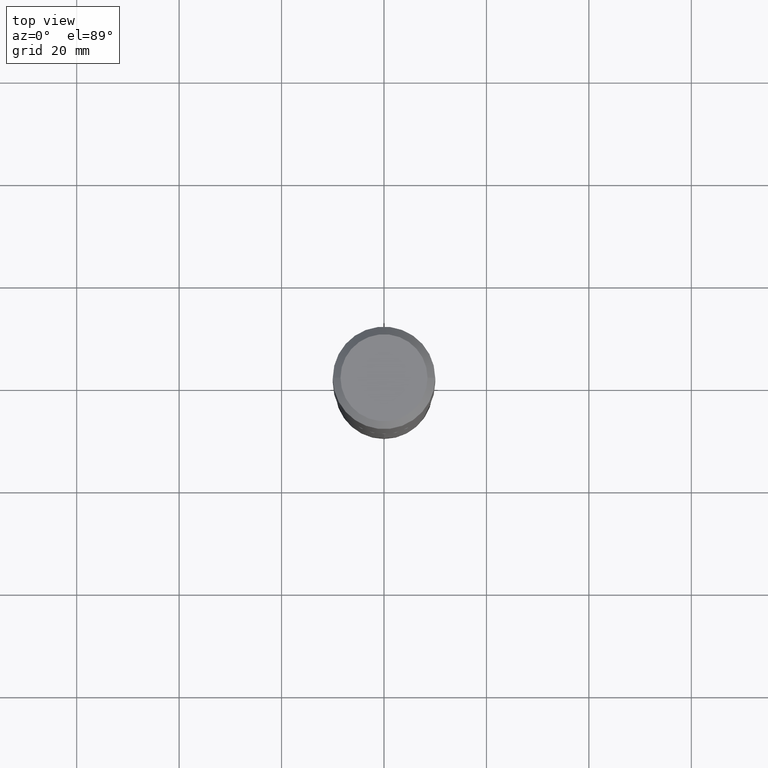
[diagram: clean part render]
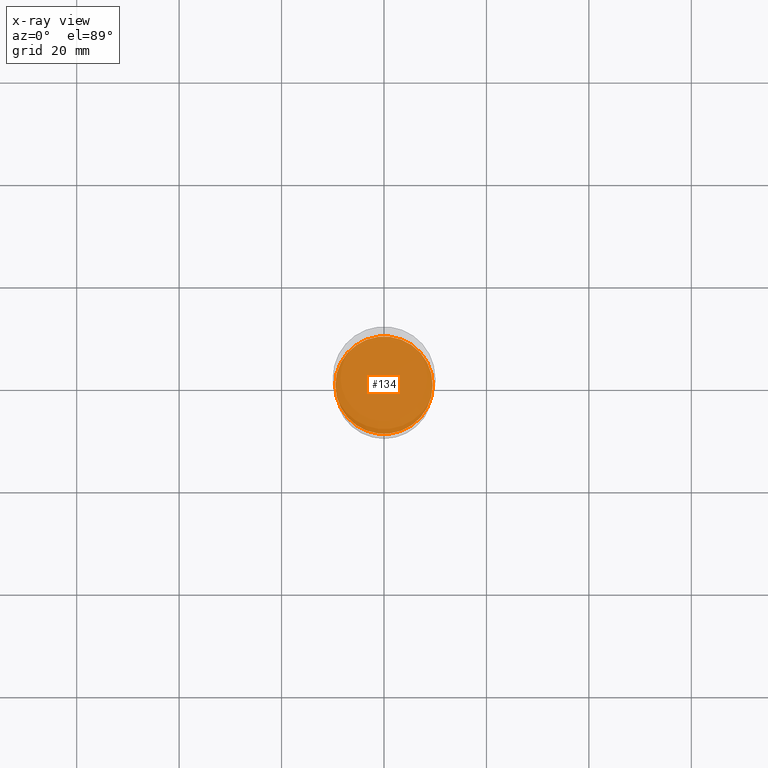
[diagram: x-ray — body ghosted, one internal face saturated and labeled with its STEP entity id]
A machine part, top view, then the same camera in x-ray: the body is ghosted and one INTERNAL B-rep face — a face not visible from any outside direction — is saturated and labeled: STEP entity #134.
In plain terms, the highlighted planar face has unit normal (-0, 0, 1).
Its self-contained STEP definition (entity closure, byte-faithful):
#10 = DIRECTION ( 'NONE',  ( -2.445468806185136597E-29, 3.491481338843145583E-15, 1.000000000000000000 ) ) ;
#15 = ORIENTED_EDGE ( 'NONE', *, *, #23, .F. ) ;
#23 = EDGE_CURVE ( 'NONE', #302, #185, #139, .T. ) ;
#25 = ORIENTED_EDGE ( 'NONE', *, *, #130, .F. ) ;
#39 = DIRECTION ( 'NONE',  ( -2.438088387897960049E-29, 3.491481338843145188E-15, 1.000000000000000000 ) ) ;
#52 = PLANE ( 'NONE',  #457 ) ;
#56 = FACE_OUTER_BOUND ( 'NONE', #191, .T. ) ;
#58 = DIRECTION ( 'NONE',  ( 1.000000000000000000, -6.982962677686268288E-15, 0.000000000000000000 ) ) ;
#69 = AXIS2_PLACEMENT_3D ( 'NONE', #86, #10, #58 ) ;
#86 = CARTESIAN_POINT ( 'NONE',  ( 8.108685467548674776E-29, -1.157705382333610061E-14, -3.315799999999999859 ) ) ;
#130 = EDGE_CURVE ( 'NONE', #185, #302, #310, .T. ) ;
#134 = ADVANCED_FACE ( 'NONE', ( #56 ), #52, .F. ) ;
#139 = CIRCLE ( 'NONE', #69, 0.3745000000000000551 ) ;
#185 = VERTEX_POINT ( 'NONE', #286 ) ;
#191 = EDGE_LOOP ( 'NONE', ( #15, #25 ) ) ;
#226 = CARTESIAN_POINT ( 'NONE',  ( 8.108685467548674776E-29, -1.157705382333610061E-14, -3.315799999999999859 ) ) ;
#232 = DIRECTION ( 'NONE',  ( 1.000000000000000000, -6.982962677686268288E-15, 0.000000000000000000 ) ) ;
#263 = CARTESIAN_POINT ( 'NONE',  ( 8.108685467548674776E-29, -1.157705382333610061E-14, -3.315799999999999859 ) ) ;
#286 = CARTESIAN_POINT ( 'NONE',  ( -0.3745000000000000551, -8.913422050740414606E-15, -3.315799999999999859 ) ) ;
#302 = VERTEX_POINT ( 'NONE', #418 ) ;
#310 = CIRCLE ( 'NONE', #405, 0.3745000000000000551 ) ;
#405 = AXIS2_PLACEMENT_3D ( 'NONE', #263, #441, #232 ) ;
#409 = DIRECTION ( 'NONE',  ( 1.000000000000000000, -6.982962677686265922E-15, 4.876176775795935793E-29 ) ) ;
#418 = CARTESIAN_POINT ( 'NONE',  ( 0.3745000000000000551, -1.419217334612960919E-14, -3.315799999999999859 ) ) ;
#441 = DIRECTION ( 'NONE',  ( -2.445468806185136597E-29, 3.491481338843145583E-15, 1.000000000000000000 ) ) ;
#457 = AXIS2_PLACEMENT_3D ( 'NONE', #226, #39, #409 ) ;